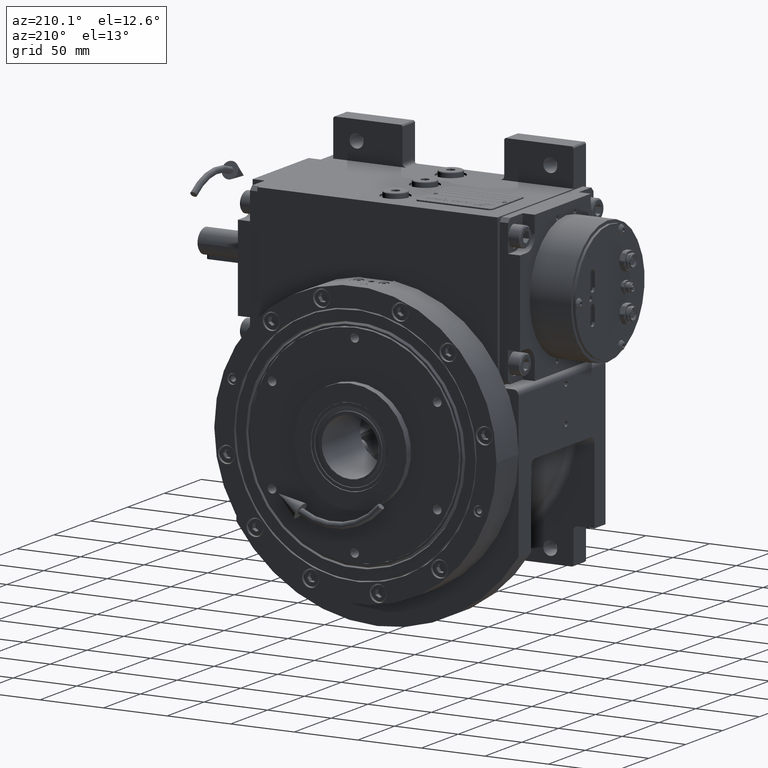
[diagram: clean part render]
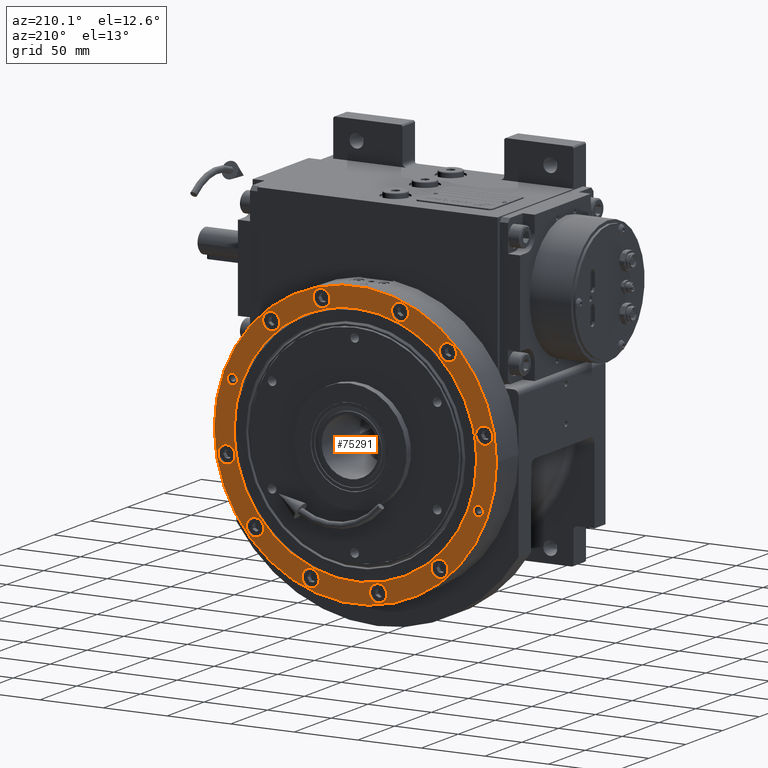
[diagram: same view with one face highlighted and labeled with its STEP entity id]
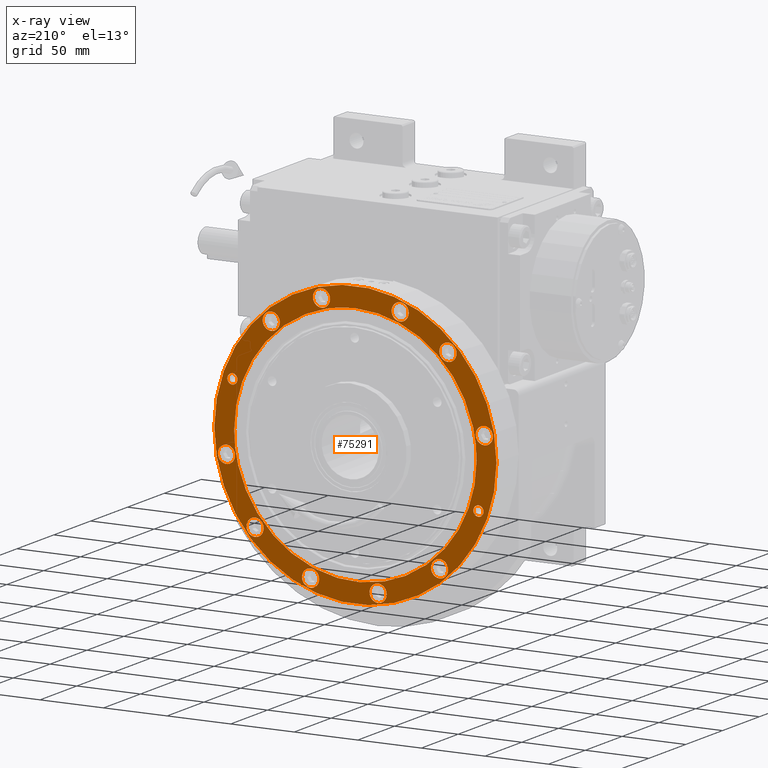
[diagram: x-ray of the same camera — body ghosted, the highlighted face saturated]
A machine part, auxiliary view. The second image highlights one B-rep face of the part: STEP entity #75291.
The next image is the same camera in x-ray: the body ghosted, the highlighted face saturated — about 0% of this face is hidden behind the body in this view.
In plain terms, the highlighted planar face has unit normal (0, 1, 0).
Its self-contained STEP definition (entity closure, byte-faithful):
#382 = DIRECTION ( 'NONE',  ( -1.000000000000000000, 0.000000000000000000, 0.000000000000000000 ) ) ;
#470 = CARTESIAN_POINT ( 'NONE',  ( 95.36396765462740177, 1.146839460001253997E-07, 30.00000093867605244 ) ) ;
#669 = CARTESIAN_POINT ( 'NONE',  ( -95.36396765462809810, -1.146839552493053995E-07, 30.00000093867580375 ) ) ;
#863 = CARTESIAN_POINT ( 'NONE',  ( -47.77533377604817844, -82.77059198701886089, 30.00000000000000355 ) ) ;
#932 = VERTEX_POINT ( 'NONE', #13231 ) ;
#965 = B_SPLINE_CURVE_WITH_KNOTS ( 'NONE', 3,
 ( #13277, #15297, #61120, #7052, #22473, #76584, #21995, #85322, #46677, #30686, #62126, #60616, #93527, #69330, #92013, #68819, #99251, #28694, #6041, #78108, #53893, #60115, #91510, #5561, #20984, #14779, #52391, #44651, #76087, #68330, #6531, #77584, #21491, #52896, #84326, #100768, #45162, #37406, #38426, #100244, #53397, #14278, #77068, #47180, #78613, #55935 ),
 .UNSPECIFIED., .F., .F.,
 ( 4, 1, 1, 1, 2, 2, 2, 2, 2, 2, 2, 2, 2, 2, 2, 2, 2, 2, 2, 2, 1, 1, 1, 2, 2, 4 ),
 ( 0.000000000000000000, 0.03124999999999973632, 0.04687499999999959061, 0.05468749999999950734, 0.05859374999999949346, 0.06249999999999947264, 0.1249999999999995282, 0.1874999999999995282, 0.2499999999999995559, 0.3124999999999995559, 0.3749999999999996114, 0.4374999999999996114, 0.4999999999999996669, 0.5624999999999996669, 0.6249999999999996669, 0.6874999999999997780, 0.7499999999999997780, 0.8124999999999997780, 0.8437499999999997780, 0.8749999999999996669, 0.9062499999999996669, 0.9218749999999996669, 0.9296874999999996669, 0.9335937499999996669, 0.9374999999999996669, 1.000000000000000000 ),
 .UNSPECIFIED. ) ;
#1873 = CARTESIAN_POINT ( 'NONE',  ( -12.46376276013532269, -94.75295510460688320, 29.99999999999999645 ) ) ;
#1924 = VERTEX_POINT ( 'NONE', #51624 ) ;
#2127 = CIRCLE ( 'NONE', #38246, 111.0000000000000000 ) ;
#2163 = CARTESIAN_POINT ( 'NONE',  ( 78.90257764125479412, 66.20712379771359224, 30.00000000000000000 ) ) ;
#2309 = CARTESIAN_POINT ( 'NONE',  ( -41.97807476254394743, -96.78833994094861737, 30.00000000000000000 ) ) ;
#3169 = AXIS2_PLACEMENT_3D ( 'NONE', #32339, #64790, #31322 ) ;
#3576 = EDGE_CURVE ( 'NONE', #8445, #6644, #39342, .T. ) ;
#3725 = EDGE_LOOP ( 'NONE', ( #59120, #12026 ) ) ;
#3976 = AXIS2_PLACEMENT_3D ( 'NONE', #53190, #23670, #95734 ) ;
#4444 = EDGE_LOOP ( 'NONE', ( #93620, #76237 ) ) ;
#4462 = ORIENTED_EDGE ( 'NONE', *, *, #78087, .F. ) ;
#5008 = VERTEX_POINT ( 'NONE', #51888 ) ;
#5213 = DIRECTION ( 'NONE',  ( 1.000000000000000000, 0.000000000000000000, 0.000000000000000000 ) ) ;
#5561 = CARTESIAN_POINT ( 'NONE',  ( 12.46375600860570287, 94.75295601976939963, 30.00000000000000000 ) ) ;
#6041 = CARTESIAN_POINT ( 'NONE',  ( -30.70943429188965013, 90.50100676390304955, 30.00000000000000000 ) ) ;
#6531 = CARTESIAN_POINT ( 'NONE',  ( 71.86025470436058527, 63.00450918191229022, 30.00000000000000000 ) ) ;
#6644 = VERTEX_POINT ( 'NONE', #99820 ) ;
#7052 = CARTESIAN_POINT ( 'NONE',  ( -94.46446497486198268, 13.22672516070912607, 30.00000000000000000 ) ) ;
#7495 = FACE_BOUND ( 'NONE', #64638, .T. ) ;
#7806 = EDGE_CURVE ( 'NONE', #71147, #55696, #34400, .T. ) ;
#8203 = DIRECTION ( 'NONE',  ( 0.000000000000000000, 0.000000000000000000, -1.000000000000000000 ) ) ;
#8365 = CIRCLE ( 'NONE', #65930, 6.749999999999999112 ) ;
#8445 = VERTEX_POINT ( 'NONE', #64650 ) ;
#8558 = DIRECTION ( 'NONE',  ( 0.000000000000000000, 0.000000000000000000, 1.000000000000000000 ) ) ;
#8873 = VERTEX_POINT ( 'NONE', #61735 ) ;
#9090 = CARTESIAN_POINT ( 'NONE',  ( -30.70968628796335764, -90.50082709171405781, 30.00000000000000355 ) ) ;
#9098 = CARTESIAN_POINT ( 'NONE',  ( 58.18781398852603814, -75.81346993082416930, 30.00000000000000000 ) ) ;
#9405 = DIRECTION ( 'NONE',  ( 1.000000000000000000, 0.000000000000000000, 0.000000000000000000 ) ) ;
#9595 = CARTESIAN_POINT ( 'NONE',  ( -82.63521911428769329, -47.70355151878913347, 30.00000000000000000 ) ) ;
#9601 = CARTESIAN_POINT ( 'NONE',  ( 94.46446488700054545, -13.22672580336032766, 30.00000000000000000 ) ) ;
#9655 = VERTEX_POINT ( 'NONE', #36797 ) ;
#9736 = EDGE_CURVE ( 'NONE', #33297, #1924, #11081, .T. ) ;
#10065 = EDGE_CURVE ( 'NONE', #56469, #20435, #19325, .T. ) ;
#10117 = CARTESIAN_POINT ( 'NONE',  ( -42.27891310516112355, -85.70857936102159158, 30.00000000000000711 ) ) ;
#11081 = CIRCLE ( 'NONE', #25911, 6.749999999999999112 ) ;
#11087 = EDGE_CURVE ( 'NONE', #95981, #35353, #101705, .T. ) ;
#11509 = CARTESIAN_POINT ( 'NONE',  ( 12.46351380911021245, -94.75307471979527918, 30.00000000000000711 ) ) ;
#11539 = CARTESIAN_POINT ( 'NONE',  ( 59.45712379771349987, -78.90257764125479412, 30.00000000000000000 ) ) ;
#11848 = VERTEX_POINT ( 'NONE', #93268 ) ;
#12026 = ORIENTED_EDGE ( 'NONE', *, *, #10065, .F. ) ;
#12227 = ORIENTED_EDGE ( 'NONE', *, *, #82983, .F. ) ;
#12295 = DIRECTION ( 'NONE',  ( 0.000000000000000000, 0.000000000000000000, -1.000000000000000000 ) ) ;
#12643 = CARTESIAN_POINT ( 'NONE',  ( -90.87954666657383029, -29.19701578448387025, 29.99999999999999645 ) ) ;
#13208 = FACE_BOUND ( 'NONE', #53904, .T. ) ;
#13231 = CARTESIAN_POINT ( 'NONE',  ( 111.0000000000000000, 0.000000000000000000, 30.00000000000000000 ) ) ;
#13277 = CARTESIAN_POINT ( 'NONE',  ( -95.36396765462809810, -1.146839552493053995E-07, 30.00000093867580375 ) ) ;
#13364 = EDGE_LOOP ( 'NONE', ( #88960, #77469, #95900 ) ) ;
#13556 = AXIS2_PLACEMENT_3D ( 'NONE', #63953, #95364, #9405 ) ;
#13667 = ORIENTED_EDGE ( 'NONE', *, *, #54031, .F. ) ;
#13725 = FACE_BOUND ( 'NONE', #84406, .T. ) ;
#14278 = CARTESIAN_POINT ( 'NONE',  ( 93.37678107592141430, 19.36817380080752926, 30.00000000000000000 ) ) ;
#14779 = CARTESIAN_POINT ( 'NONE',  ( 30.70968072591939446, 90.50082900647421980, 30.00000000000000000 ) ) ;
#15297 = CARTESIAN_POINT ( 'NONE',  ( -95.36203230917192286, 3.139160565545314086, 30.00000000000000355 ) ) ;
#16529 = ORIENTED_EDGE ( 'NONE', *, *, #63840, .F. ) ;
#16753 = CARTESIAN_POINT ( 'NONE',  ( -24.63576229969385167, 101.4351985602574047, 30.00000000000000000 ) ) ;
#16775 = B_SPLINE_CURVE_WITH_KNOTS ( 'NONE', 3,
 ( #79655, #71388, #1873, #72417, #9090, #10117, #863, #32236, #25024, #33765, #56467, #48723, #9595, #56964, #88376, #58997, #12643, #42004, #49771, #58505, #57990, #28063, #26553, #73424, #83195 ),
 .UNSPECIFIED., .F., .F.,
 ( 4, 2, 2, 2, 2, 2, 2, 2, 1, 1, 1, 2, 2, 4 ),
 ( 0.5000000245318184655, 0.5625000214653411712, 0.6250000183988639879, 0.6875000153323866936, 0.7500000122659093993, 0.8125000091994321050, 0.8437500076661934578, 0.8750000061329546996, 0.9062500045997161635, 0.9218750038330967289, 0.9296875034497871226, 0.9335937532581322085, 0.9375000030664774053, 1.000000000000000000 ),
 .UNSPECIFIED. ) ;
#16825 = CARTESIAN_POINT ( 'NONE',  ( 85.70824843684401628, -42.27978968348480038, 30.00000000000000711 ) ) ;
#17420 = EDGE_CURVE ( 'NONE', #1924, #33297, #65610, .T. ) ;
#17711 = AXIS2_PLACEMENT_3D ( 'NONE', #41761, #41237, #58261 ) ;
#18046 = CARTESIAN_POINT ( 'NONE',  ( 101.4351985602574047, 17.88576229969384812, 30.00000000000000000 ) ) ;
#18909 = DIRECTION ( 'NONE',  ( -1.000000000000000000, 0.000000000000000000, 0.000000000000000000 ) ) ;
#19237 = CARTESIAN_POINT ( 'NONE',  ( 24.74579385898234207, -92.31004482326460447, 30.00000000000000000 ) ) ;
#19325 = CIRCLE ( 'NONE', #42309, 6.750000000000006217 ) ;
#20112 = EDGE_CURVE ( 'NONE', #30840, #43448, #52124, .T. ) ;
#20253 = CARTESIAN_POINT ( 'NONE',  ( 66.20712379771359224, -78.90257764125479412, 30.00000000000000000 ) ) ;
#20435 = VERTEX_POINT ( 'NONE', #60030 ) ;
#20462 = ORIENTED_EDGE ( 'NONE', *, *, #9736, .F. ) ;
#20984 = CARTESIAN_POINT ( 'NONE',  ( 24.74553572605270091, 92.31016553175284400, 30.00000000000000355 ) ) ;
#21084 = DIRECTION ( 'NONE',  ( 0.000000000000000000, 0.000000000000000000, 1.000000000000000000 ) ) ;
#21217 = EDGE_CURVE ( 'NONE', #11848, #5008, #63781, .T. ) ;
#21480 = EDGE_CURVE ( 'NONE', #35385, #9655, #57054, .T. ) ;
#21491 = CARTESIAN_POINT ( 'NONE',  ( 81.03134691207912965, 50.37871826842354750, 30.00000000000000000 ) ) ;
#21932 = FACE_BOUND ( 'NONE', #42557, .T. ) ;
#21995 = CARTESIAN_POINT ( 'NONE',  ( -93.68169764418615841, 17.83509717152595542, 30.00000000000000355 ) ) ;
#22075 = VERTEX_POINT ( 'NONE', #669 ) ;
#22416 = FACE_BOUND ( 'NONE', #90597, .T. ) ;
#22473 = CARTESIAN_POINT ( 'NONE',  ( -94.03135713042799182, 15.91796746885852265, 30.00000000000000355 ) ) ;
#23670 = DIRECTION ( 'NONE',  ( 0.000000000000000000, 0.000000000000000000, 1.000000000000000000 ) ) ;
#24222 = DIRECTION ( 'NONE',  ( 0.000000000000000000, 0.000000000000000000, 1.000000000000000000 ) ) ;
#24746 = ORIENTED_EDGE ( 'NONE', *, *, #20112, .F. ) ;
#24850 = DIRECTION ( 'NONE',  ( -1.000000000000000000, 0.000000000000000000, 0.000000000000000000 ) ) ;
#25024 = CARTESIAN_POINT ( 'NONE',  ( -63.00504900422143351, -71.86005655515261026, 29.99999999999999645 ) ) ;
#25036 = CARTESIAN_POINT ( 'NONE',  ( 6.261277018832593022, -95.36384883878687901, 30.00000000000000000 ) ) ;
#25643 = EDGE_CURVE ( 'NONE', #60794, #60916, #57875, .T. ) ;
#25821 = DIRECTION ( 'NONE',  ( 0.000000000000000000, 0.000000000000000000, 1.000000000000000000 ) ) ;
#25911 = AXIS2_PLACEMENT_3D ( 'NONE', #50752, #67189, #43000 ) ;
#26070 = AXIS2_PLACEMENT_3D ( 'NONE', #33236, #8558, #79121 ) ;
#26553 = CARTESIAN_POINT ( 'NONE',  ( -94.74933639994532086, -12.47889505275104050, 30.00000000000000355 ) ) ;
#26695 = CIRCLE ( 'NONE', #13556, 6.749999999999999112 ) ;
#26955 = CARTESIAN_POINT ( 'NONE',  ( 82.77081126671009770, -47.77538228772262840, 30.00000000000000355 ) ) ;
#28063 = CARTESIAN_POINT ( 'NONE',  ( -93.45575989371496917, -18.98328321807429475, 30.00000000000000000 ) ) ;
#28694 = CARTESIAN_POINT ( 'NONE',  ( -42.27918093678602673, 85.70839122648196451, 29.99999999999999645 ) ) ;
#28890 = CARTESIAN_POINT ( 'NONE',  ( -111.0000000000000000, 4.531193156845210737E-15, 30.00000000000000000 ) ) ;
#29621 = FACE_BOUND ( 'NONE', #43718, .T. ) ;
#29889 = CIRCLE ( 'NONE', #66090, 6.749999999999999112 ) ;
#30523 = EDGE_CURVE ( 'NONE', #86740, #8873, #79504, .T. ) ;
#30686 = CARTESIAN_POINT ( 'NONE',  ( -90.50165271740971207, 30.70816492772434003, 30.00000000000000000 ) ) ;
#30774 = DIRECTION ( 'NONE',  ( 0.000000000000000000, 0.000000000000000000, 1.000000000000000000 ) ) ;
#30792 = AXIS2_PLACEMENT_3D ( 'NONE', #81534, #66049, #48577 ) ;
#30840 = VERTEX_POINT ( 'NONE', #97378 ) ;
#30991 = CARTESIAN_POINT ( 'NONE',  ( 26.65836164555969745, -99.49036010777399497, 30.00000000000000000 ) ) ;
#31116 = DIRECTION ( 'NONE',  ( 1.000000000000000000, 0.000000000000000000, 0.000000000000000000 ) ) ;
#31292 = CARTESIAN_POINT ( 'NONE',  ( -17.88576229969384812, 101.4351985602574047, 30.00000000000000000 ) ) ;
#31322 = DIRECTION ( 'NONE',  ( 1.000000000000000000, 0.000000000000000000, 0.000000000000000000 ) ) ;
#31604 = EDGE_LOOP ( 'NONE', ( #83118, #86466 ) ) ;
#31650 = CARTESIAN_POINT ( 'NONE',  ( -66.08199846221440055, -72.83199846221440055, 30.00000000000000000 ) ) ;
#32236 = CARTESIAN_POINT ( 'NONE',  ( -58.18774616747545991, -75.81359184743369894, 29.99999999999999289 ) ) ;
#32339 = CARTESIAN_POINT ( 'NONE',  ( -35.22807476254394743, -96.78833994094861737, 30.00000000000000000 ) ) ;
#32373 = EDGE_CURVE ( 'NONE', #45390, #70206, #54941, .T. ) ;
#32748 = CARTESIAN_POINT ( 'NONE',  ( 95.36396765462740177, 1.146839460001253997E-07, 30.00000093867605244 ) ) ;
#33207 = DIRECTION ( 'NONE',  ( 0.000000000000000000, 0.000000000000000000, 1.000000000000000000 ) ) ;
#33236 = CARTESIAN_POINT ( 'NONE',  ( 35.22807476254389769, 96.78833994094861737, 30.00000000000000000 ) ) ;
#33297 = VERTEX_POINT ( 'NONE', #2309 ) ;
#33613 = ORIENTED_EDGE ( 'NONE', *, *, #91110, .T. ) ;
#33765 = CARTESIAN_POINT ( 'NONE',  ( -71.86025690672755672, -63.00450664072521079, 30.00000000000000711 ) ) ;
#33922 = CARTESIAN_POINT ( 'NONE',  ( -72.95712379771350697, 78.90257764125469464, 30.00000000000000000 ) ) ;
#34231 = AXIS2_PLACEMENT_3D ( 'NONE', #49820, #81223, #18909 ) ;
#34400 = CIRCLE ( 'NONE', #62399, 6.750000000000006217 ) ;
#35299 = CARTESIAN_POINT ( 'NONE',  ( 66.20712379771359224, -78.90257764125479412, 30.00000000000000000 ) ) ;
#35353 = VERTEX_POINT ( 'NONE', #37966 ) ;
#35385 = VERTEX_POINT ( 'NONE', #100816 ) ;
#36019 = VERTEX_POINT ( 'NONE', #28890 ) ;
#36797 = CARTESIAN_POINT ( 'NONE',  ( 33.40836164555970100, -99.49036010777399497, 30.00000000000000000 ) ) ;
#37225 = VERTEX_POINT ( 'NONE', #16753 ) ;
#37406 = CARTESIAN_POINT ( 'NONE',  ( 90.87954623065817827, 29.19701717010804387, 30.00000000000000711 ) ) ;
#37855 = FACE_BOUND ( 'NONE', #64725, .T. ) ;
#37966 = CARTESIAN_POINT ( 'NONE',  ( 41.97807476254389769, 96.78833994094861737, 30.00000000000000000 ) ) ;
#38234 = CARTESIAN_POINT ( 'NONE',  ( -72.83199846221440055, -72.83199846221440055, 30.00000000000000000 ) ) ;
#38246 = AXIS2_PLACEMENT_3D ( 'NONE', #63145, #55420, #49761 ) ;
#38426 = CARTESIAN_POINT ( 'NONE',  ( 92.33404786841357748, 23.93848947927231663, 30.00000000000000711 ) ) ;
#38467 = AXIS2_PLACEMENT_3D ( 'NONE', #18046, #24222, #55135 ) ;
#38531 = EDGE_CURVE ( 'NONE', #8873, #22075, #16775, .T. ) ;
#38612 = EDGE_CURVE ( 'NONE', #93966, #89842, #89242, .T. ) ;
#38878 = FACE_OUTER_BOUND ( 'NONE', #4444, .T. ) ;
#39001 = EDGE_LOOP ( 'NONE', ( #16529, #87975 ) ) ;
#39342 = CIRCLE ( 'NONE', #50933, 4.000000000000003553 ) ;
#40601 = CARTESIAN_POINT ( 'NONE',  ( -96.78833994094861737, 35.22807476254389769, 30.00000000000000000 ) ) ;
#40767 = AXIS2_PLACEMENT_3D ( 'NONE', #90196, #50556, #5213 ) ;
#40980 = CARTESIAN_POINT ( 'NONE',  ( 93.60825815810538586, -18.21660170345569085, 29.99999999999999289 ) ) ;
#41237 = DIRECTION ( 'NONE',  ( 0.000000000000000000, 0.000000000000000000, 1.000000000000000000 ) ) ;
#41761 = CARTESIAN_POINT ( 'NONE',  ( -72.83199846221440055, -72.83199846221440055, 30.00000000000000000 ) ) ;
#42003 = ORIENTED_EDGE ( 'NONE', *, *, #3576, .T. ) ;
#42004 = CARTESIAN_POINT ( 'NONE',  ( -92.33404816371216839, -23.93848833026562062, 30.00000000000000355 ) ) ;
#42309 = AXIS2_PLACEMENT_3D ( 'NONE', #93898, #69704, #24850 ) ;
#42557 = EDGE_LOOP ( 'NONE', ( #13667, #95011 ) ) ;
#43000 = DIRECTION ( 'NONE',  ( -1.000000000000000000, 0.000000000000000000, 0.000000000000000000 ) ) ;
#43319 = EDGE_CURVE ( 'NONE', #89842, #93966, #64141, .T. ) ;
#43448 = VERTEX_POINT ( 'NONE', #92281 ) ;
#43718 = EDGE_LOOP ( 'NONE', ( #53217, #72439 ) ) ;
#44651 = CARTESIAN_POINT ( 'NONE',  ( 47.77532949789286931, 82.77059448476107661, 30.00000000000000000 ) ) ;
#45100 = FACE_BOUND ( 'NONE', #3725, .T. ) ;
#45162 = CARTESIAN_POINT ( 'NONE',  ( 89.30279146915873412, 33.60238395645772869, 30.00000000000000355 ) ) ;
#45193 = DIRECTION ( 'NONE',  ( 1.000000000000000000, 0.000000000000000000, 0.000000000000000000 ) ) ;
#45390 = VERTEX_POINT ( 'NONE', #33922 ) ;
#45588 = FACE_BOUND ( 'NONE', #47464, .T. ) ;
#46492 = CARTESIAN_POINT ( 'NONE',  ( -11.13576229969381970, 101.4351985602574047, 30.00000000000000000 ) ) ;
#46677 = CARTESIAN_POINT ( 'NONE',  ( -92.30979584540520477, 24.74573865369705317, 29.99999999999999289 ) ) ;
#46925 = CARTESIAN_POINT ( 'NONE',  ( -59.45712379771349987, 78.90257764125469464, 30.00000000000000000 ) ) ;
#47180 = CARTESIAN_POINT ( 'NONE',  ( 94.74933634001871496, 12.47889566074964307, 30.00000000000000711 ) ) ;
#47282 = CIRCLE ( 'NONE', #30792, 6.750000000000006217 ) ;
#47464 = EDGE_LOOP ( 'NONE', ( #52733, #20462 ) ) ;
#48577 = DIRECTION ( 'NONE',  ( 1.000000000000000000, 0.000000000000000000, 0.000000000000000000 ) ) ;
#48723 = CARTESIAN_POINT ( 'NONE',  ( -81.03134828296784065, -50.37871605510206763, 30.00000000000000000 ) ) ;
#49542 = CIRCLE ( 'NONE', #75854, 6.750000000000006217 ) ;
#49761 = DIRECTION ( 'NONE',  ( 1.000000000000000000, 0.000000000000000000, 0.000000000000000000 ) ) ;
#49771 = CARTESIAN_POINT ( 'NONE',  ( -92.96503752574049884, -21.27949132939219368, 30.00000000000000000 ) ) ;
#49820 = CARTESIAN_POINT ( 'NONE',  ( 26.65836164555969745, -99.49036010777399497, 30.00000000000000000 ) ) ;
#50140 = CIRCLE ( 'NONE', #55091, 6.750000000000002665 ) ;
#50182 = EDGE_CURVE ( 'NONE', #55696, #71147, #49542, .T. ) ;
#50411 = ORIENTED_EDGE ( 'NONE', *, *, #71673, .F. ) ;
#50556 = DIRECTION ( 'NONE',  ( 0.000000000000000000, 0.000000000000000000, -1.000000000000000000 ) ) ;
#50654 = CARTESIAN_POINT ( 'NONE',  ( 63.00533069534351682, -71.85988062351042061, 30.00000000000000711 ) ) ;
#50752 = CARTESIAN_POINT ( 'NONE',  ( -35.22807476254394743, -96.78833994094861737, 30.00000000000000000 ) ) ;
#50933 = AXIS2_PLACEMENT_3D ( 'NONE', #68310, #99716, #67294 ) ;
#51624 = CARTESIAN_POINT ( 'NONE',  ( -28.47807476254395098, -96.78833994094861737, 30.00000000000000000 ) ) ;
#51888 = CARTESIAN_POINT ( 'NONE',  ( -100.7883399409486032, 35.22807476254389769, 30.00000000000000000 ) ) ;
#52124 = CIRCLE ( 'NONE', #68569, 6.750000000000006217 ) ;
#52147 = DIRECTION ( 'NONE',  ( 0.000000000000000000, 0.000000000000000000, 1.000000000000000000 ) ) ;
#52391 = CARTESIAN_POINT ( 'NONE',  ( 42.27890844989412500, 85.70858167851324083, 30.00000000000000355 ) ) ;
#52733 = ORIENTED_EDGE ( 'NONE', *, *, #17420, .F. ) ;
#52896 = CARTESIAN_POINT ( 'NONE',  ( 82.63521789501693604, 47.70355364001917309, 30.00000000000000000 ) ) ;
#53190 = CARTESIAN_POINT ( 'NONE',  ( -66.20712379771349276, 78.90257764125469464, 30.00000000000000000 ) ) ;
#53217 = ORIENTED_EDGE ( 'NONE', *, *, #7806, .F. ) ;
#53397 = CARTESIAN_POINT ( 'NONE',  ( 93.21483388766992562, 20.13355074554134205, 30.00000000000000000 ) ) ;
#53822 = CARTESIAN_POINT ( 'NONE',  ( 35.22807476254389769, 96.78833994094861737, 30.00000000000000000 ) ) ;
#53893 = CARTESIAN_POINT ( 'NONE',  ( -12.46352048017085501, 94.75307382072006135, 30.00000000000000355 ) ) ;
#53904 = EDGE_LOOP ( 'NONE', ( #12227, #24746 ) ) ;
#54031 = EDGE_CURVE ( 'NONE', #9655, #35385, #50140, .T. ) ;
#54941 = CIRCLE ( 'NONE', #3976, 6.750000000000006217 ) ;
#55091 = AXIS2_PLACEMENT_3D ( 'NONE', #30991, #92827, #93318 ) ;
#55135 = DIRECTION ( 'NONE',  ( 1.000000000000000000, 0.000000000000000000, 0.000000000000000000 ) ) ;
#55373 = DIRECTION ( 'NONE',  ( -1.000000000000000000, 0.000000000000000000, 0.000000000000000000 ) ) ;
#55420 = DIRECTION ( 'NONE',  ( 0.000000000000000000, 0.000000000000000000, 1.000000000000000000 ) ) ;
#55696 = VERTEX_POINT ( 'NONE', #71137 ) ;
#55800 = AXIS2_PLACEMENT_3D ( 'NONE', #78027, #101689, #31116 ) ;
#55935 = CARTESIAN_POINT ( 'NONE',  ( 95.36396765462740177, 1.146839460001253997E-07, 30.00000093867605244 ) ) ;
#56467 = CARTESIAN_POINT ( 'NONE',  ( -75.81440830140243747, -58.18610632982992570, 30.00000000000000355 ) ) ;
#56469 = VERTEX_POINT ( 'NONE', #71905 ) ;
#56964 = CARTESIAN_POINT ( 'NONE',  ( -85.57274245185685402, -42.20782022335594519, 30.00000000000000355 ) ) ;
#57054 = CIRCLE ( 'NONE', #34231, 6.749999999999999112 ) ;
#57068 = CIRCLE ( 'NONE', #83387, 4.000000000000003553 ) ;
#57255 = DIRECTION ( 'NONE',  ( -1.000000000000000000, 0.000000000000000000, 0.000000000000000000 ) ) ;
#57278 = AXIS2_PLACEMENT_3D ( 'NONE', #77016, #92468, #84760 ) ;
#57549 = CIRCLE ( 'NONE', #98703, 4.000000000000003553 ) ;
#57875 = CIRCLE ( 'NONE', #72689, 6.750000000000006217 ) ;
#57988 = EDGE_CURVE ( 'NONE', #20435, #56469, #47282, .T. ) ;
#57990 = CARTESIAN_POINT ( 'NONE',  ( -93.37678127073233725, -19.36817286081602418, 30.00000000000000000 ) ) ;
#58261 = DIRECTION ( 'NONE',  ( -1.000000000000000000, 0.000000000000000000, 0.000000000000000000 ) ) ;
#58388 = CARTESIAN_POINT ( 'NONE',  ( 75.81391712312019138, -58.18695144119686802, 30.00000000000000711 ) ) ;
#58505 = CARTESIAN_POINT ( 'NONE',  ( -93.21483409806533871, -20.13354977035402271, 30.00000000000000000 ) ) ;
#58997 = CARTESIAN_POINT ( 'NONE',  ( -89.30279205802959552, -33.60238237805035055, 29.99999999999999289 ) ) ;
#59120 = ORIENTED_EDGE ( 'NONE', *, *, #57988, .F. ) ;
#59378 = CARTESIAN_POINT ( 'NONE',  ( 90.50165223639055512, -30.70816640261620734, 30.00000000000000355 ) ) ;
#60030 = CARTESIAN_POINT ( 'NONE',  ( -94.68519856025739045, -17.88576229969384812, 30.00000000000000000 ) ) ;
#60115 = CARTESIAN_POINT ( 'NONE',  ( -6.261284131796054808, 95.36384835916985026, 29.99999999999999645 ) ) ;
#60616 = CARTESIAN_POINT ( 'NONE',  ( -82.77081249183450495, 47.77538013039470144, 30.00000000000000711 ) ) ;
#60794 = VERTEX_POINT ( 'NONE', #31650 ) ;
#60861 = EDGE_CURVE ( 'NONE', #70206, #45390, #62325, .T. ) ;
#60916 = VERTEX_POINT ( 'NONE', #96495 ) ;
#61055 = DIRECTION ( 'NONE',  ( 0.000000000000000000, 0.000000000000000000, 1.000000000000000000 ) ) ;
#61120 = CARTESIAN_POINT ( 'NONE',  ( -95.13156735912539830, 7.818614458239847131, 30.00000000000001066 ) ) ;
#61712 = DIRECTION ( 'NONE',  ( -1.000000000000000000, 0.000000000000000000, 0.000000000000000000 ) ) ;
#61735 = CARTESIAN_POINT ( 'NONE',  ( -4.229489444460266770E-10, -95.36392179383099688, 29.99999999999998579 ) ) ;
#62126 = CARTESIAN_POINT ( 'NONE',  ( -85.70824936691572304, 42.27978775190128147, 30.00000000000000000 ) ) ;
#62325 = CIRCLE ( 'NONE', #55800, 6.749999999999999112 ) ;
#62399 = AXIS2_PLACEMENT_3D ( 'NONE', #76677, #21084, #67928 ) ;
#63121 = ORIENTED_EDGE ( 'NONE', *, *, #72240, .T. ) ;
#63145 = CARTESIAN_POINT ( 'NONE',  ( 0.000000000000000000, 0.000000000000000000, 30.00000000000000000 ) ) ;
#63674 = CARTESIAN_POINT ( 'NONE',  ( 101.4351985602574047, 17.88576229969384812, 30.00000000000000000 ) ) ;
#63781 = CIRCLE ( 'NONE', #40767, 4.000000000000003553 ) ;
#63831 = CARTESIAN_POINT ( 'NONE',  ( 28.47807476254390124, 96.78833994094861737, 30.00000000000000000 ) ) ;
#63840 = EDGE_CURVE ( 'NONE', #35353, #95981, #29889, .T. ) ;
#63953 = CARTESIAN_POINT ( 'NONE',  ( -17.88576229969384812, 101.4351985602574047, 30.00000000000000000 ) ) ;
#64141 = CIRCLE ( 'NONE', #88869, 6.750000000000006217 ) ;
#64174 = CARTESIAN_POINT ( 'NONE',  ( 93.68169747965613681, -17.83509803590425236, 30.00000000000000000 ) ) ;
#64368 = EDGE_CURVE ( 'NONE', #95444, #37225, #26695, .T. ) ;
#64638 = EDGE_LOOP ( 'NONE', ( #98482, #88691 ) ) ;
#64650 = CARTESIAN_POINT ( 'NONE',  ( 92.78833994094860316, -35.22807476254389769, 30.00000000000000000 ) ) ;
#64725 = EDGE_LOOP ( 'NONE', ( #85241, #4462 ) ) ;
#64790 = DIRECTION ( 'NONE',  ( 0.000000000000000000, 0.000000000000000000, 1.000000000000000000 ) ) ;
#65610 = CIRCLE ( 'NONE', #3169, 6.749999999999999112 ) ;
#65930 = AXIS2_PLACEMENT_3D ( 'NONE', #31292, #30774, #61712 ) ;
#66049 = DIRECTION ( 'NONE',  ( 0.000000000000000000, 0.000000000000000000, 1.000000000000000000 ) ) ;
#66090 = AXIS2_PLACEMENT_3D ( 'NONE', #53822, #61055, #70288 ) ;
#66434 = CIRCLE ( 'NONE', #38467, 6.750000000000006217 ) ;
#67080 = CARTESIAN_POINT ( 'NONE',  ( 85.65257764125480833, 66.20712379771359224, 30.00000000000000000 ) ) ;
#67084 = CARTESIAN_POINT ( 'NONE',  ( -4.229489444460266770E-10, -95.36392179383099688, 29.99999999999998579 ) ) ;
#67189 = DIRECTION ( 'NONE',  ( 0.000000000000000000, 0.000000000000000000, 1.000000000000000000 ) ) ;
#67294 = DIRECTION ( 'NONE',  ( -1.000000000000000000, 0.000000000000000000, 0.000000000000000000 ) ) ;
#67634 = DIRECTION ( 'NONE',  ( 1.000000000000000000, 0.000000000000000000, 0.000000000000000000 ) ) ;
#67928 = DIRECTION ( 'NONE',  ( 1.000000000000000000, 0.000000000000000000, 0.000000000000000000 ) ) ;
#68310 = CARTESIAN_POINT ( 'NONE',  ( 96.78833994094861737, -35.22807476254389769, 30.00000000000000000 ) ) ;
#68330 = CARTESIAN_POINT ( 'NONE',  ( 63.00504599296380093, 71.86005922779146715, 30.00000000000000000 ) ) ;
#68569 = AXIS2_PLACEMENT_3D ( 'NONE', #63674, #93563, #382 ) ;
#68819 = CARTESIAN_POINT ( 'NONE',  ( -58.18781742204076579, 75.81346727614813119, 30.00000000000000355 ) ) ;
#69273 = FACE_BOUND ( 'NONE', #84701, .T. ) ;
#69330 = CARTESIAN_POINT ( 'NONE',  ( -71.85999357129684029, 63.00467825743183425, 30.00000000000000711 ) ) ;
#69704 = DIRECTION ( 'NONE',  ( 0.000000000000000000, 0.000000000000000000, 1.000000000000000000 ) ) ;
#69795 = FACE_BOUND ( 'NONE', #39001, .T. ) ;
#70206 = VERTEX_POINT ( 'NONE', #46925 ) ;
#70288 = DIRECTION ( 'NONE',  ( 1.000000000000000000, 0.000000000000000000, 0.000000000000000000 ) ) ;
#70292 = PLANE ( 'NONE',  #57278 ) ;
#71137 = CARTESIAN_POINT ( 'NONE',  ( 72.15257764125480833, 66.20712379771359224, 30.00000000000000000 ) ) ;
#71147 = VERTEX_POINT ( 'NONE', #67080 ) ;
#71388 = CARTESIAN_POINT ( 'NONE',  ( -6.261276405276430701, -95.36391539573197917, 30.00000000000000355 ) ) ;
#71673 = EDGE_CURVE ( 'NONE', #60916, #60794, #83501, .T. ) ;
#71849 = CARTESIAN_POINT ( 'NONE',  ( 0.000000000000000000, 0.000000000000000000, 30.00000000000000000 ) ) ;
#71905 = CARTESIAN_POINT ( 'NONE',  ( -108.1851985602573905, -17.88576229969384812, 30.00000000000000000 ) ) ;
#72240 = EDGE_CURVE ( 'NONE', #6644, #8445, #57068, .T. ) ;
#72417 = CARTESIAN_POINT ( 'NONE',  ( -24.74554162888736641, -92.31016393001900155, 30.00000000000000355 ) ) ;
#72439 = ORIENTED_EDGE ( 'NONE', *, *, #50182, .F. ) ;
#72689 = AXIS2_PLACEMENT_3D ( 'NONE', #38234, #77921, #67634 ) ;
#72869 = ORIENTED_EDGE ( 'NONE', *, *, #21217, .T. ) ;
#73424 = CARTESIAN_POINT ( 'NONE',  ( -95.36004226824213958, -6.278671002909074872, 29.99999999999999645 ) ) ;
#73559 = CARTESIAN_POINT ( 'NONE',  ( 72.95712379771360645, -78.90257764125479412, 30.00000000000000000 ) ) ;
#75291 = ADVANCED_FACE ( 'NONE', ( #76026, #100180, #21932, #45588, #22416, #45100, #7495, #37855, #69795, #29621, #13208, #69273, #13725, #38878 ), #70292, .T. ) ;
#75854 = AXIS2_PLACEMENT_3D ( 'NONE', #2163, #25821, #57255 ) ;
#76026 = FACE_BOUND ( 'NONE', #13364, .T. ) ;
#76087 = CARTESIAN_POINT ( 'NONE',  ( 58.18774278256792343, 75.81359446972774663, 30.00000000000000000 ) ) ;
#76205 = ORIENTED_EDGE ( 'NONE', *, *, #25643, .F. ) ;
#76237 = ORIENTED_EDGE ( 'NONE', *, *, #81472, .T. ) ;
#76584 = CARTESIAN_POINT ( 'NONE',  ( -93.82440591446295741, 17.06861137740426670, 30.00000000000000000 ) ) ;
#76677 = CARTESIAN_POINT ( 'NONE',  ( 78.90257764125479412, 66.20712379771359224, 30.00000000000000000 ) ) ;
#77016 = CARTESIAN_POINT ( 'NONE',  ( 0.000000000000000000, 0.000000000000000000, 30.00000000000000000 ) ) ;
#77068 = CARTESIAN_POINT ( 'NONE',  ( 93.45575970705768043, 18.98328413746123289, 30.00000000000000000 ) ) ;
#77469 = ORIENTED_EDGE ( 'NONE', *, *, #30523, .T. ) ;
#77584 = CARTESIAN_POINT ( 'NONE',  ( 75.81440643586275030, 58.18610879824851168, 30.00000000000000355 ) ) ;
#77921 = DIRECTION ( 'NONE',  ( 0.000000000000000000, 0.000000000000000000, 1.000000000000000000 ) ) ;
#78027 = CARTESIAN_POINT ( 'NONE',  ( -66.20712379771349276, 78.90257764125469464, 30.00000000000000000 ) ) ;
#78087 = EDGE_CURVE ( 'NONE', #37225, #95444, #8365, .T. ) ;
#78108 = CARTESIAN_POINT ( 'NONE',  ( -24.74579984280093115, 92.31004320519716089, 30.00000000000000355 ) ) ;
#78613 = CARTESIAN_POINT ( 'NONE',  ( 95.36004226804972461, 6.278671310551059648, 30.00000000000000000 ) ) ;
#79121 = DIRECTION ( 'NONE',  ( -1.000000000000000000, 0.000000000000000000, 0.000000000000000000 ) ) ;
#79392 = AXIS2_PLACEMENT_3D ( 'NONE', #35299, #97105, #81680 ) ;
#79504 = B_SPLINE_CURVE_WITH_KNOTS ( 'NONE', 3,
 ( #32748, #87373, #90286, #9601, #90794, #98507, #64174, #40980, #95577, #59378, #16825, #26955, #58388, #89792, #50654, #9098, #82060, #87893, #79659, #19237, #11509, #25036, #67084 ),
 .UNSPECIFIED., .F., .F.,
 ( 4, 1, 1, 1, 2, 2, 2, 2, 2, 2, 2, 2, 4 ),
 ( 0.000000000000000000, 0.03125000153323884838, 0.04687500229985828298, 0.05468750268316800028, 0.05859375287482285199, 0.06250000306647769677, 0.1250000061329549494, 0.1875000091994322160, 0.2500000122659094548, 0.3125000153323866936, 0.3750000183988639879, 0.4375000214653412267, 0.5000000245318184655 ),
 .UNSPECIFIED. ) ;
#79655 = CARTESIAN_POINT ( 'NONE',  ( -4.229489444460266770E-10, -95.36392179383099688, 29.99999999999998579 ) ) ;
#79659 = CARTESIAN_POINT ( 'NONE',  ( 30.70942879387967750, -90.50100865208744949, 30.00000000000000711 ) ) ;
#81223 = DIRECTION ( 'NONE',  ( 0.000000000000000000, 0.000000000000000000, 1.000000000000000000 ) ) ;
#81432 = EDGE_CURVE ( 'NONE', #22075, #86740, #965, .T. ) ;
#81472 = EDGE_CURVE ( 'NONE', #932, #36019, #2127, .T. ) ;
#81534 = CARTESIAN_POINT ( 'NONE',  ( -101.4351985602574047, -17.88576229969384812, 30.00000000000000000 ) ) ;
#81680 = DIRECTION ( 'NONE',  ( -1.000000000000000000, 0.000000000000000000, 0.000000000000000000 ) ) ;
#82060 = CARTESIAN_POINT ( 'NONE',  ( 47.77527696021381587, -82.77071031253373690, 30.00000000000000711 ) ) ;
#82983 = EDGE_CURVE ( 'NONE', #43448, #30840, #66434, .T. ) ;
#83118 = ORIENTED_EDGE ( 'NONE', *, *, #43319, .F. ) ;
#83195 = CARTESIAN_POINT ( 'NONE',  ( -95.36396765462809810, -1.146839552493053995E-07, 30.00000093867580375 ) ) ;
#83387 = AXIS2_PLACEMENT_3D ( 'NONE', #100268, #12295, #45193 ) ;
#83501 = CIRCLE ( 'NONE', #17711, 6.750000000000006217 ) ;
#84326 = CARTESIAN_POINT ( 'NONE',  ( 85.57274150929065115, 42.20782214628508200, 30.00000000000001066 ) ) ;
#84406 = EDGE_LOOP ( 'NONE', ( #63121, #42003 ) ) ;
#84701 = EDGE_LOOP ( 'NONE', ( #72869, #33613 ) ) ;
#84760 = DIRECTION ( 'NONE',  ( 1.000000000000000000, 0.000000000000000000, 0.000000000000000000 ) ) ;
#85241 = ORIENTED_EDGE ( 'NONE', *, *, #64368, .F. ) ;
#85322 = CARTESIAN_POINT ( 'NONE',  ( -93.60825833065003110, 18.21660081669610776, 29.99999999999998934 ) ) ;
#86466 = ORIENTED_EDGE ( 'NONE', *, *, #38612, .F. ) ;
#86740 = VERTEX_POINT ( 'NONE', #470 ) ;
#86996 = DIRECTION ( 'NONE',  ( -1.000000000000000000, 0.000000000000000000, 0.000000000000000000 ) ) ;
#87373 = CARTESIAN_POINT ( 'NONE',  ( 95.36203230907722173, -3.139160719051879767, 30.00000000000000355 ) ) ;
#87893 = CARTESIAN_POINT ( 'NONE',  ( 42.27917621702663098, -85.70839357087398014, 30.00000000000000000 ) ) ;
#87975 = ORIENTED_EDGE ( 'NONE', *, *, #11087, .F. ) ;
#88376 = CARTESIAN_POINT ( 'NONE',  ( -86.90708454479874945, -39.38558881133341316, 30.00000000000000000 ) ) ;
#88691 = ORIENTED_EDGE ( 'NONE', *, *, #32373, .F. ) ;
#88869 = AXIS2_PLACEMENT_3D ( 'NONE', #20253, #52147, #89781 ) ;
#88960 = ORIENTED_EDGE ( 'NONE', *, *, #81432, .T. ) ;
#89242 = CIRCLE ( 'NONE', #79392, 6.749999999999999112 ) ;
#89781 = DIRECTION ( 'NONE',  ( 1.000000000000000000, 0.000000000000000000, 0.000000000000000000 ) ) ;
#89792 = CARTESIAN_POINT ( 'NONE',  ( 71.85999133533280769, -63.00468083268515329, 30.00000000000000355 ) ) ;
#89842 = VERTEX_POINT ( 'NONE', #73559 ) ;
#90196 = CARTESIAN_POINT ( 'NONE',  ( -96.78833994094861737, 35.22807476254389769, 30.00000000000000000 ) ) ;
#90286 = CARTESIAN_POINT ( 'NONE',  ( 95.13156733655866049, -7.818614839516469850, 30.00000000000000355 ) ) ;
#90597 = EDGE_LOOP ( 'NONE', ( #76205, #50411 ) ) ;
#90794 = CARTESIAN_POINT ( 'NONE',  ( 94.03135700014991016, -15.91796824110771880, 30.00000000000000000 ) ) ;
#91110 = EDGE_CURVE ( 'NONE', #5008, #11848, #57549, .T. ) ;
#91510 = CARTESIAN_POINT ( 'NONE',  ( 6.261269386993523867, 95.36391587527333513, 30.00000000000000355 ) ) ;
#92013 = CARTESIAN_POINT ( 'NONE',  ( -63.00533367268138107, 71.85987798514420888, 30.00000000000000000 ) ) ;
#92136 = CIRCLE ( 'NONE', #95438, 111.0000000000000000 ) ;
#92281 = CARTESIAN_POINT ( 'NONE',  ( 108.1851985602573905, 17.88576229969384812, 30.00000000000000000 ) ) ;
#92468 = DIRECTION ( 'NONE',  ( 0.000000000000000000, 0.000000000000000000, 1.000000000000000000 ) ) ;
#92827 = DIRECTION ( 'NONE',  ( 0.000000000000000000, 0.000000000000000000, 1.000000000000000000 ) ) ;
#93268 = CARTESIAN_POINT ( 'NONE',  ( -92.78833994094860316, 35.22807476254389769, 30.00000000000000000 ) ) ;
#93318 = DIRECTION ( 'NONE',  ( 1.000000000000000000, 0.000000000000000000, 0.000000000000000000 ) ) ;
#93527 = CARTESIAN_POINT ( 'NONE',  ( -75.81391896997033086, 58.18694900105990797, 30.00000000000001776 ) ) ;
#93563 = DIRECTION ( 'NONE',  ( 0.000000000000000000, 0.000000000000000000, 1.000000000000000000 ) ) ;
#93620 = ORIENTED_EDGE ( 'NONE', *, *, #96912, .T. ) ;
#93898 = CARTESIAN_POINT ( 'NONE',  ( -101.4351985602574047, -17.88576229969384812, 30.00000000000000000 ) ) ;
#93966 = VERTEX_POINT ( 'NONE', #11539 ) ;
#95011 = ORIENTED_EDGE ( 'NONE', *, *, #21480, .F. ) ;
#95364 = DIRECTION ( 'NONE',  ( 0.000000000000000000, 0.000000000000000000, 1.000000000000000000 ) ) ;
#95438 = AXIS2_PLACEMENT_3D ( 'NONE', #71849, #33207, #55373 ) ;
#95444 = VERTEX_POINT ( 'NONE', #46492 ) ;
#95577 = CARTESIAN_POINT ( 'NONE',  ( 92.30979554816967436, -24.74573984201948207, 30.00000000000000355 ) ) ;
#95734 = DIRECTION ( 'NONE',  ( -1.000000000000000000, 0.000000000000000000, 0.000000000000000000 ) ) ;
#95900 = ORIENTED_EDGE ( 'NONE', *, *, #38531, .T. ) ;
#95981 = VERTEX_POINT ( 'NONE', #63831 ) ;
#96495 = CARTESIAN_POINT ( 'NONE',  ( -79.58199846221440055, -72.83199846221440055, 30.00000000000000000 ) ) ;
#96912 = EDGE_CURVE ( 'NONE', #36019, #932, #92136, .T. ) ;
#97105 = DIRECTION ( 'NONE',  ( 0.000000000000000000, 0.000000000000000000, 1.000000000000000000 ) ) ;
#97378 = CARTESIAN_POINT ( 'NONE',  ( 94.68519856025739045, 17.88576229969384812, 30.00000000000000000 ) ) ;
#98482 = ORIENTED_EDGE ( 'NONE', *, *, #60861, .F. ) ;
#98507 = CARTESIAN_POINT ( 'NONE',  ( 93.82440576391282150, -17.06861220496205078, 29.99999999999999645 ) ) ;
#98703 = AXIS2_PLACEMENT_3D ( 'NONE', #40601, #8203, #86996 ) ;
#99251 = CARTESIAN_POINT ( 'NONE',  ( -47.77528118985262040, 82.77070784699705541, 30.00000000000000355 ) ) ;
#99716 = DIRECTION ( 'NONE',  ( 0.000000000000000000, 0.000000000000000000, -1.000000000000000000 ) ) ;
#99820 = CARTESIAN_POINT ( 'NONE',  ( 100.7883399409486032, -35.22807476254389769, 30.00000000000000000 ) ) ;
#100180 = FACE_BOUND ( 'NONE', #31604, .T. ) ;
#100244 = CARTESIAN_POINT ( 'NONE',  ( 92.96503729129275939, 21.27949235716416965, 29.99999999999999289 ) ) ;
#100268 = CARTESIAN_POINT ( 'NONE',  ( 96.78833994094861737, -35.22807476254389769, 30.00000000000000000 ) ) ;
#100768 = CARTESIAN_POINT ( 'NONE',  ( 86.90708372316407804, 39.38559063786794923, 30.00000000000000711 ) ) ;
#100816 = CARTESIAN_POINT ( 'NONE',  ( 19.90836164555969745, -99.49036010777399497, 30.00000000000000000 ) ) ;
#101689 = DIRECTION ( 'NONE',  ( 0.000000000000000000, 0.000000000000000000, 1.000000000000000000 ) ) ;
#101705 = CIRCLE ( 'NONE', #26070, 6.749999999999999112 ) ;